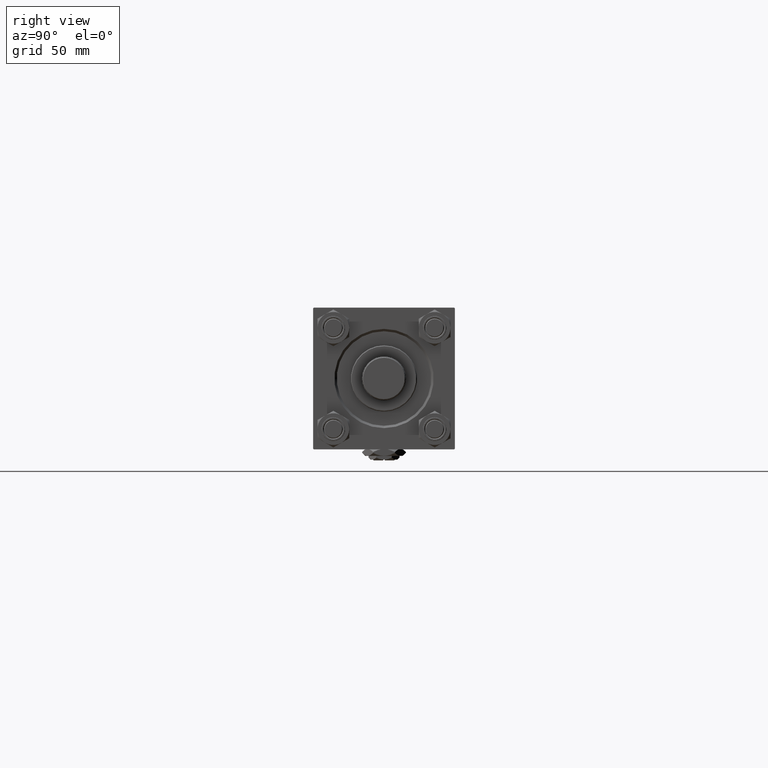
[diagram: clean part render]
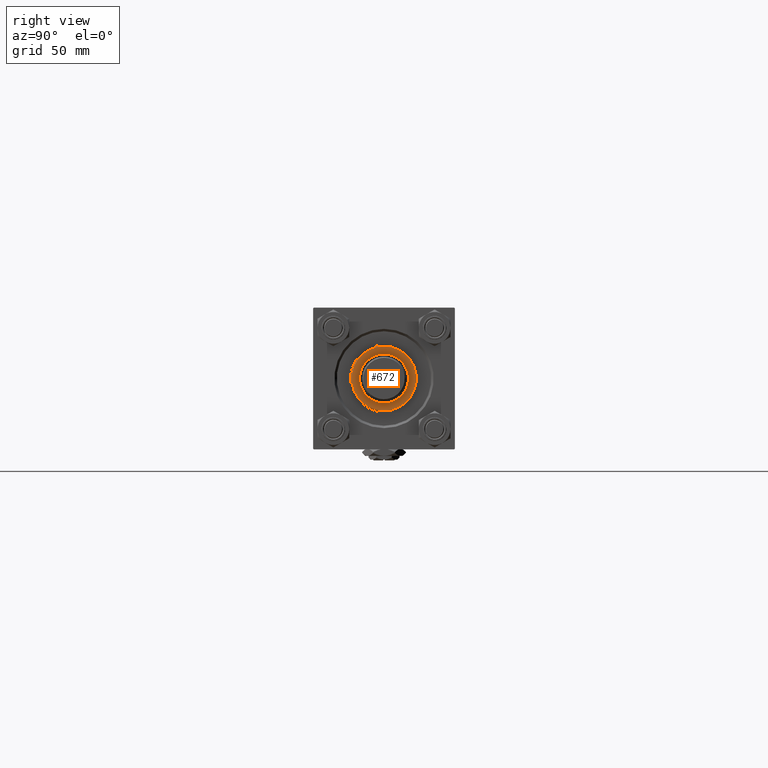
[diagram: same view with one face highlighted and labeled with its STEP entity id]
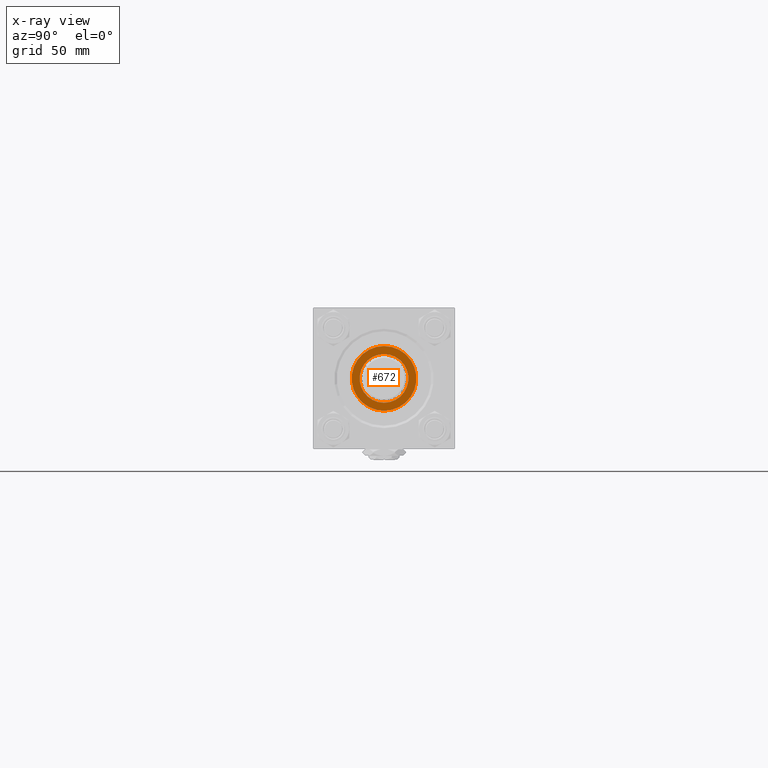
[diagram: x-ray of the same camera — body ghosted, the highlighted face saturated]
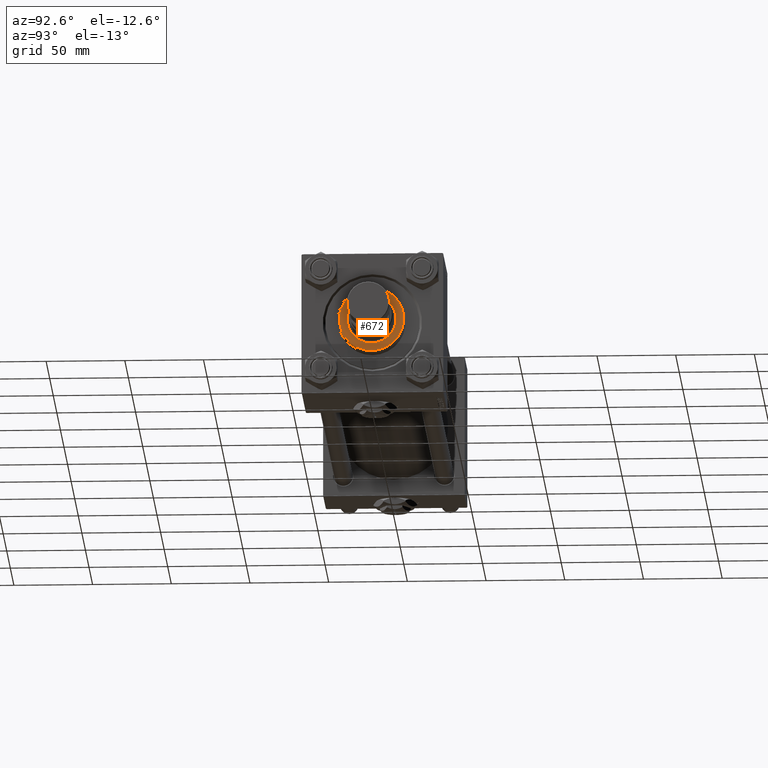
[diagram: same view with one face highlighted and labeled with its STEP entity id]
A machine part, right view. The second image highlights one B-rep face of the part: STEP entity #672.
The next image is the same camera in x-ray: the body ghosted, the highlighted face saturated — about 0% of this face is hidden behind the body in this view.
A second angle (auxiliary view) of the same face is appended — the face is thin or edge-on in the first view.
In plain terms, the highlighted planar face has unit normal (1, 0, -0).
Its self-contained STEP definition (entity closure, byte-faithful):
#41 = CIRCLE ( 'NONE', #33945, 15.50000000000000000 ) ;
#672 = ADVANCED_FACE ( 'NONE', ( #48785, #21268 ), #37394, .T. ) ;
#804 = DIRECTION ( 'NONE',  ( 0.000000000000000000, 0.000000000000000000, 1.000000000000000000 ) ) ;
#1166 = CARTESIAN_POINT ( 'NONE',  ( 0.000000000000000000, 0.000000000000000000, 39.69999999999999574 ) ) ;
#1692 = DIRECTION ( 'NONE',  ( 1.000000000000000000, 0.000000000000000000, -0.000000000000000000 ) ) ;
#2341 = VERTEX_POINT ( 'NONE', #44103 ) ;
#4150 = CARTESIAN_POINT ( 'NONE',  ( 20.50000000000000355, 2.541142108230758269E-15, 39.69999999999999574 ) ) ;
#6427 = AXIS2_PLACEMENT_3D ( 'NONE', #36502, #804, #40202 ) ;
#8087 = DIRECTION ( 'NONE',  ( 0.000000000000000000, 0.000000000000000000, 1.000000000000000000 ) ) ;
#10348 = EDGE_CURVE ( 'NONE', #36682, #11089, #40219, .T. ) ;
#10921 = EDGE_CURVE ( 'NONE', #19637, #2341, #21621, .T. ) ;
#11089 = VERTEX_POINT ( 'NONE', #17680 ) ;
#11869 = CARTESIAN_POINT ( 'NONE',  ( 0.000000000000000000, 0.000000000000000000, 39.69999999999999574 ) ) ;
#12290 = DIRECTION ( 'NONE',  ( 1.000000000000000000, 0.000000000000000000, 0.000000000000000000 ) ) ;
#14884 = EDGE_LOOP ( 'NONE', ( #43411, #34883 ) ) ;
#17680 = CARTESIAN_POINT ( 'NONE',  ( -20.50000000000000355, 0.000000000000000000, 39.69999999999999574 ) ) ;
#19637 = VERTEX_POINT ( 'NONE', #45118 ) ;
#20244 = EDGE_CURVE ( 'NONE', #11089, #36682, #46345, .T. ) ;
#20258 = DIRECTION ( 'NONE',  ( 1.000000000000000000, 0.000000000000000000, 0.000000000000000000 ) ) ;
#21268 = FACE_OUTER_BOUND ( 'NONE', #14884, .T. ) ;
#21621 = CIRCLE ( 'NONE', #32601, 15.50000000000000000 ) ;
#24354 = AXIS2_PLACEMENT_3D ( 'NONE', #11869, #48104, #48371 ) ;
#27650 = EDGE_LOOP ( 'NONE', ( #42062, #46044 ) ) ;
#32601 = AXIS2_PLACEMENT_3D ( 'NONE', #52233, #44562, #12290 ) ;
#33945 = AXIS2_PLACEMENT_3D ( 'NONE', #36642, #8087, #20258 ) ;
#34883 = ORIENTED_EDGE ( 'NONE', *, *, #10348, .T. ) ;
#36502 = CARTESIAN_POINT ( 'NONE',  ( 0.000000000000000000, 0.000000000000000000, 39.69999999999999574 ) ) ;
#36642 = CARTESIAN_POINT ( 'NONE',  ( 0.000000000000000000, 0.000000000000000000, 39.69999999999999574 ) ) ;
#36682 = VERTEX_POINT ( 'NONE', #4150 ) ;
#37394 = PLANE ( 'NONE',  #39854 ) ;
#39854 = AXIS2_PLACEMENT_3D ( 'NONE', #1166, #49302, #1692 ) ;
#40202 = DIRECTION ( 'NONE',  ( 1.000000000000000000, 0.000000000000000000, 0.000000000000000000 ) ) ;
#40219 = CIRCLE ( 'NONE', #6427, 20.50000000000000355 ) ;
#42062 = ORIENTED_EDGE ( 'NONE', *, *, #42498, .F. ) ;
#42498 = EDGE_CURVE ( 'NONE', #2341, #19637, #41, .T. ) ;
#43411 = ORIENTED_EDGE ( 'NONE', *, *, #20244, .T. ) ;
#44103 = CARTESIAN_POINT ( 'NONE',  ( 15.50000000000000000, 0.000000000000000000, 39.69999999999999574 ) ) ;
#44562 = DIRECTION ( 'NONE',  ( 0.000000000000000000, 0.000000000000000000, 1.000000000000000000 ) ) ;
#45118 = CARTESIAN_POINT ( 'NONE',  ( -15.50000000000000000, 1.898202538678397557E-15, 39.69999999999999574 ) ) ;
#46044 = ORIENTED_EDGE ( 'NONE', *, *, #10921, .F. ) ;
#46345 = CIRCLE ( 'NONE', #24354, 20.50000000000000355 ) ;
#48104 = DIRECTION ( 'NONE',  ( 0.000000000000000000, 0.000000000000000000, 1.000000000000000000 ) ) ;
#48371 = DIRECTION ( 'NONE',  ( 1.000000000000000000, 0.000000000000000000, 0.000000000000000000 ) ) ;
#48785 = FACE_BOUND ( 'NONE', #27650, .T. ) ;
#49302 = DIRECTION ( 'NONE',  ( 0.000000000000000000, 0.000000000000000000, 1.000000000000000000 ) ) ;
#52233 = CARTESIAN_POINT ( 'NONE',  ( 0.000000000000000000, 0.000000000000000000, 39.69999999999999574 ) ) ;